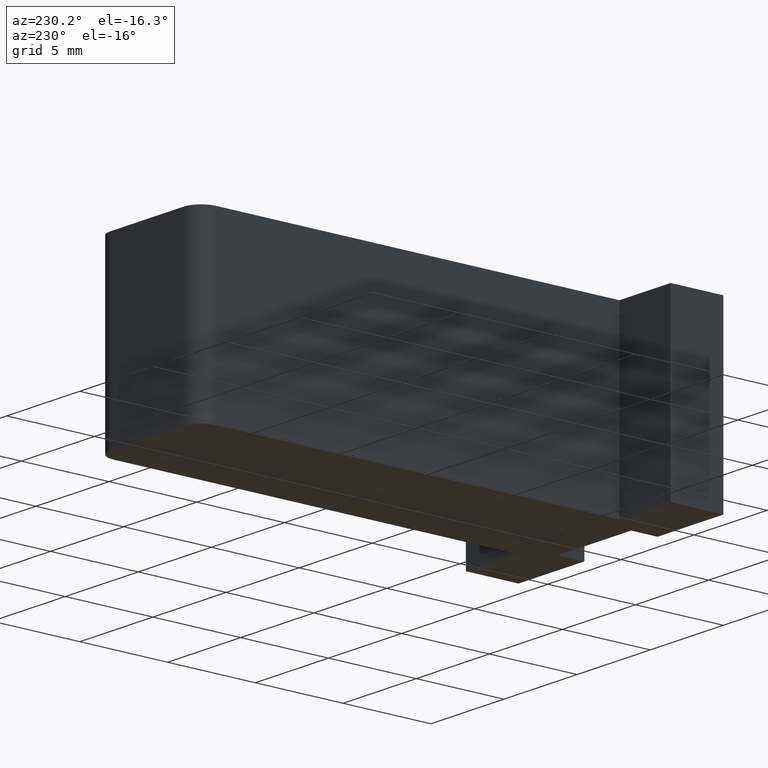
[diagram: clean part render]
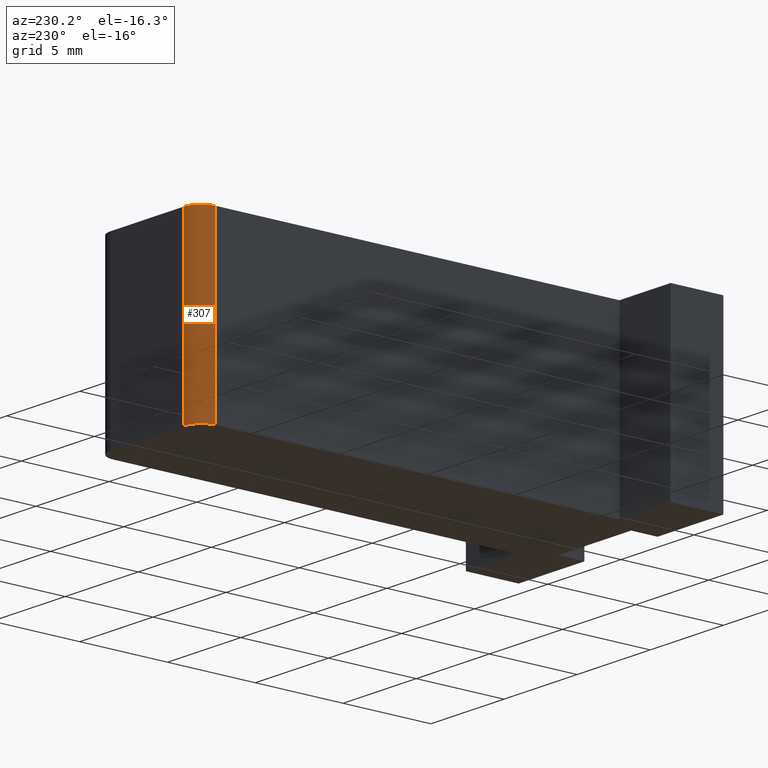
[diagram: same view with one face highlighted and labeled with its STEP entity id]
A machine part, auxiliary view. The second image highlights one B-rep face of the part: STEP entity #307.
In plain terms, the highlighted cylindrical surface (edge-blend (fillet) strip) has radius 1 mm, axis along (0, 0, 1).
Its self-contained STEP definition (entity closure, byte-faithful):
#14=CYLINDRICAL_SURFACE('',#348,1.00000000000001);
#27=FACE_OUTER_BOUND('',#43,.T.);
#43=EDGE_LOOP('',(#243,#244,#245,#246));
#51=CIRCLE('',#339,1.00000000000001);
#53=CIRCLE('',#349,1.00000000000001);
#81=LINE('',#497,#119);
#82=LINE('',#501,#120);
#119=VECTOR('',#406,10.);
#120=VECTOR('',#411,10.);
#140=VERTEX_POINT('',#457);
#141=VERTEX_POINT('',#459);
#152=VERTEX_POINT('',#495);
#153=VERTEX_POINT('',#499);
#168=EDGE_CURVE('',#141,#140,#51,.T.);
#187=EDGE_CURVE('',#152,#140,#81,.T.);
#188=EDGE_CURVE('',#152,#153,#53,.T.);
#189=EDGE_CURVE('',#153,#141,#82,.T.);
#243=ORIENTED_EDGE('',*,*,#188,.T.);
#244=ORIENTED_EDGE('',*,*,#189,.T.);
#245=ORIENTED_EDGE('',*,*,#168,.T.);
#246=ORIENTED_EDGE('',*,*,#187,.F.);
#307=ADVANCED_FACE('',(#27),#14,.T.);
#339=AXIS2_PLACEMENT_3D('',#460,#371,#372);
#348=AXIS2_PLACEMENT_3D('',#498,#407,#408);
#349=AXIS2_PLACEMENT_3D('',#500,#409,#410);
#371=DIRECTION('center_axis',(0.,0.,1.));
#372=DIRECTION('ref_axis',(3.33066907387545E-15,-1.,0.));
#406=DIRECTION('',(0.,0.,-1.));
#407=DIRECTION('center_axis',(0.,0.,1.));
#408=DIRECTION('ref_axis',(3.33066907387545E-15,-1.,0.));
#409=DIRECTION('center_axis',(0.,0.,-1.));
#410=DIRECTION('ref_axis',(3.33066907387545E-15,-1.,0.));
#411=DIRECTION('',(0.,0.,-1.));
#457=CARTESIAN_POINT('',(-3.5,26.,-5.));
#459=CARTESIAN_POINT('',(-2.5,27.,-5.));
#460=CARTESIAN_POINT('Origin',(-2.5,26.,-5.));
#495=CARTESIAN_POINT('',(-3.5,26.,5.));
#497=CARTESIAN_POINT('',(-3.5,26.,0.));
#498=CARTESIAN_POINT('Origin',(-2.5,26.,0.));
#499=CARTESIAN_POINT('',(-2.5,27.,5.));
#500=CARTESIAN_POINT('Origin',(-2.5,26.,5.));
#501=CARTESIAN_POINT('',(-2.5,27.,0.));